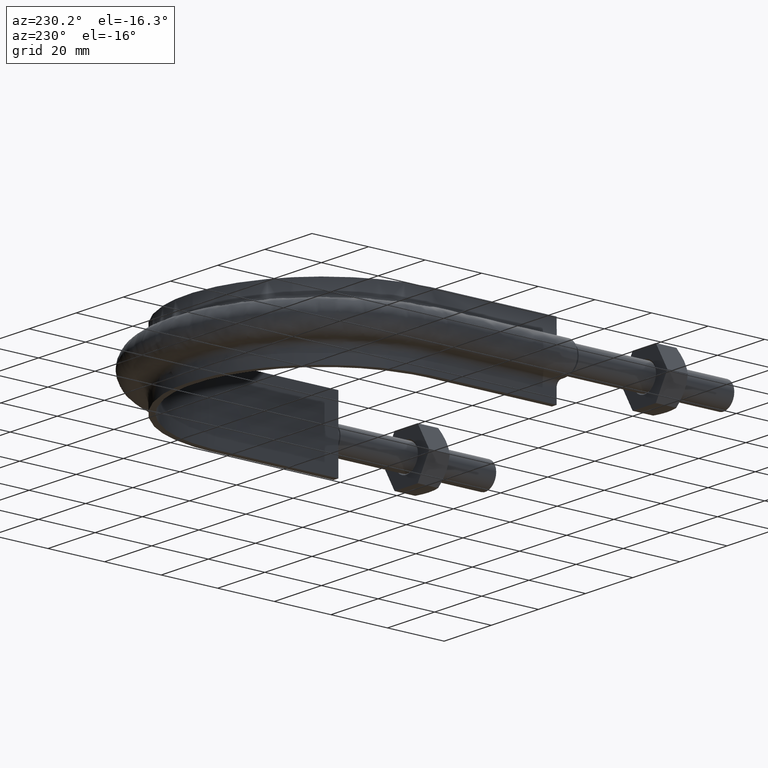
[diagram: clean part render]
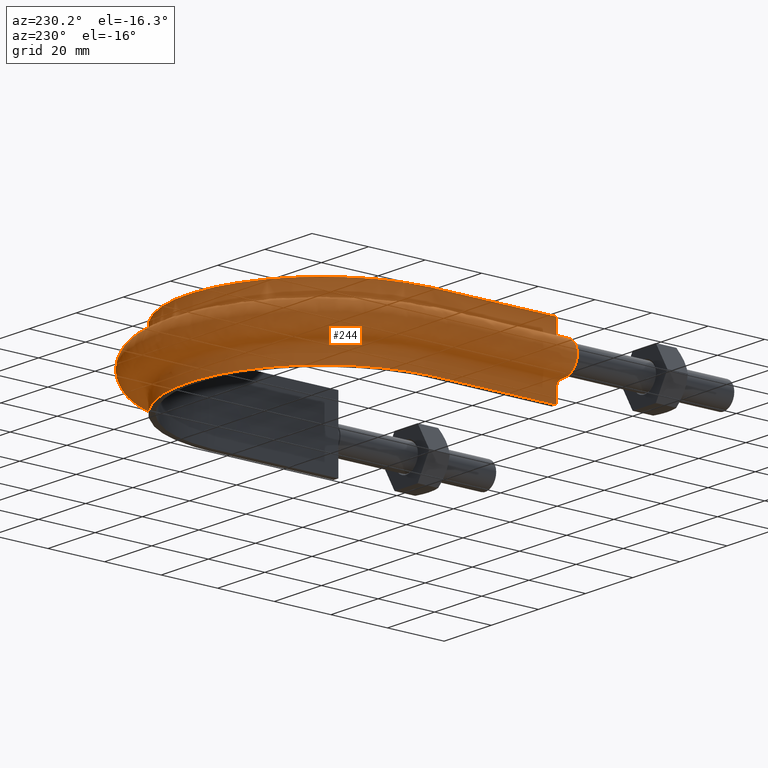
[diagram: same view with one face highlighted and labeled with its STEP entity id]
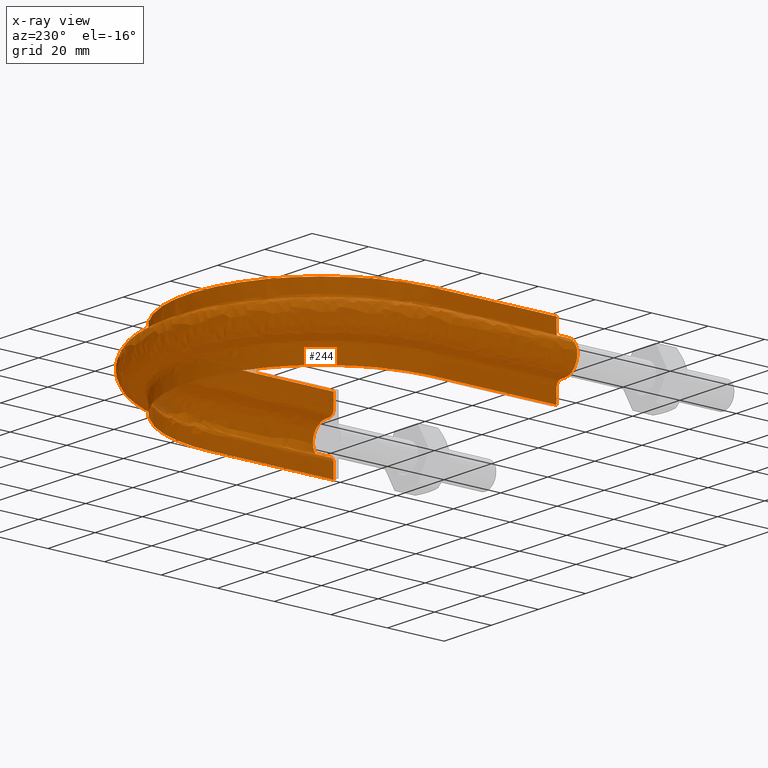
[diagram: x-ray of the same camera — body ghosted, the highlighted face saturated]
A machine part, auxiliary view. The second image highlights one B-rep face of the part: STEP entity #244.
The next image is the same camera in x-ray: the body ghosted, the highlighted face saturated — about 1% of this face is hidden behind the body in this view.
In plain terms, the highlighted face is a freeform B-spline surface patch.
Its self-contained STEP definition (entity closure, byte-faithful):
#244 = ADVANCED_FACE( '', ( #354 ), #355, .F. );
#354 = FACE_OUTER_BOUND( '', #685, .T. );
#355 = B_SPLINE_SURFACE_WITH_KNOTS( '', 3, 3, ( ( #686, #687, #688, #689, #690, #691, #692, #693, #694, #695, #696, #697, #698, #699, #700, #701 ), ( #702, #703, #704, #705, #706, #707, #708, #709, #710, #711, #712, #713, #714, #715, #716, #717 ), ( #718, #719, #720, #721, #722, #723, #724, #725, #726, #727, #728, #729, #730, #731, #732, #733 ), ( #734, #735, #736, #737, #738, #739, #740, #741, #742, #743, #744, #745, #746, #747, #748, #749 ), ( #750, #751, #752, #753, #754, #755, #756, #757, #758, #759, #760, #761, #762, #763, #764, #765 ), ( #766, #767, #768, #769, #770, #771, #772, #773, #774, #775, #776, #777, #778, #779, #780, #781 ), ( #782, #783, #784, #785, #786, #787, #788, #789, #790, #791, #792, #793, #794, #795, #796, #797 ), ( #798, #799, #800, #801, #802, #803, #804, #805, #806, #807, #808, #809, #810, #811, #812, #813 ), ( #814, #815, #816, #817, #818, #819, #820, #821, #822, #823, #824, #825, #826, #827, #828, #829 ), ( #830, #831, #832, #833, #834, #835, #836, #837, #838, #839, #840, #841, #842, #843, #844, #845 ), ( #846, #847, #848, #849, #850, #851, #852, #853, #854, #855, #856, #857, #858, #859, #860, #861 ), ( #862, #863, #864, #865, #866, #867, #868, #869, #870, #871, #872, #873, #874, #875, #876, #877 ), ( #878, #879, #880, #881, #882, #883, #884, #885, #886, #887, #888, #889, #890, #891, #892, #893 ), ( #894, #895, #896, #897, #898, #899, #900, #901, #902, #903, #904, #905, #906, #907, #908, #909 ), ( #910, #911, #912, #913, #914, #915, #916, #917, #918, #919, #920, #921, #922, #923, #924, #925 ), ( #926, #927, #928, #929, #930, #931, #932, #933, #934, #935, #936, #937, #938, #939, #940, #941 ), ( #942, #943, #944, #945, #946, #947, #948, #949, #950, #951, #952, #953, #954, #955, #956, #957 ), ( #958, #959, #960, #961, #962, #963, #964, #965, #966, #967, #968, #969, #970, #971, #972, #973 ), ( #974, #975, #976, #977, #978, #979, #980, #981, #982, #983, #984, #985, #986, #987, #988, #989 ), ( #990, #991, #992, #993, #994, #995, #996, #997, #998, #999, #1000, #1001, #1002, #1003, #1004, #1005 ), ( #1006, #1007, #1008, #1009, #1010, #1011, #1012, #1013, #1014, #1015, #1016, #1017, #1018, #1019, #1020, #1021 ), ( #1022, #1023, #1024, #1025, #1026, #1027, #1028, #1029, #1030, #1031, #1032, #1033, #1034, #1035, #1036, #1037 ), ( #1038, #1039, #1040, #1041, #1042, #1043, #1044, #1045, #1046, #1047, #1048, #1049, #1050, #1051, #1052, #1053 ), ( #1054, #1055, #1056, #1057, #1058, #1059, #1060, #1061, #1062, #1063, #1064, #1065, #1066, #1067, #1068, #1069 ), ( #1070, #1071, #1072, #1073, #1074, #1075, #1076, #1077, #1078, #1079, #1080, #1081, #1082, #1083, #1084, #1085 ), ( #1086, #1087, #1088, #1089, #1090, #1091, #1092, #1093, #1094, #1095, #1096, #1097, #1098, #1099, #1100, #1101 ), ( #1102, #1103, #1104, #1105, #1106, #1107, #1108, #1109, #1110, #1111, #1112, #1113, #1114, #1115, #1116, #1117 ), ( #1118, #1119, #1120, #1121, #1122, #1123, #1124, #1125, #1126, #1127, #1128, #1129, #1130, #1131, #1132, #1133 ), ( #1134, #1135, #1136, #1137, #1138, #1139, #1140, #1141, #1142, #1143, #1144, #1145, #1146, #1147, #1148, #1149 ), ( #1150, #1151, #1152, #1153, #1154, #1155, #1156, #1157, #1158, #1159, #1160, #1161, #1162, #1163, #1164, #1165 ), ( #1166, #1167, #1168, #1169, #1170, #1171, #1172, #1173, #1174, #1175, #1176, #1177, #1178, #1179, #1180, #1181 ) ), .UNSPECIFIED., .F., .F., .F., ( 4, 3, 1, 1, 1, 3, 3, 1, 1, 1, 3, 3, 1, 1, 1, 3, 4 ), ( 4, 3, 1, 1, 1, 1, 1, 1, 3, 4 ), ( 0.105263157894737, 0.157894736842105, 0.210526315789474, 0.263157894736842, 0.315789473684211, 0.368421052631579, 0.421052631578947, 0.473684210526316, 0.526315789473684, 0.578947368421053, 0.631578947368421, 0.684210526315789, 0.736842105263158, 0.789473684210526, 0.842105263157895, 0.894736842105263, 0.947368421052632 ), ( 0.000000000000000, 1.00000000000000, 2.00000000000000, 3.00000000000000, 4.00000000000000, 5.00000000000000, 6.00000000000000, 7.00000000000000, 8.00000000000000, 9.00000000000000 ), .UNSPECIFIED. );
#685 = EDGE_LOOP( '', ( #1603, #1604, #1605, #1606 ) );
#686 = CARTESIAN_POINT( '', ( -47.3000000000000, 53.1000000000000, 12.5000000000000 ) );
#687 = CARTESIAN_POINT( '', ( -47.3000000000000, 68.6333333333334, 12.5000000000000 ) );
#688 = CARTESIAN_POINT( '', ( -47.3000000000000, 84.1666666666667, 12.5000000000000 ) );
#689 = CARTESIAN_POINT( '', ( -47.3000000000000, 99.7000000000000, 12.5000000000000 ) );
#690 = CARTESIAN_POINT( '', ( -47.3000000000000, 106.766118839385, 12.5000000000000 ) );
#691 = CARTESIAN_POINT( '', ( -44.0706150865366, 120.927141121989, 12.5000000000000 ) );
#692 = CARTESIAN_POINT( '', ( -30.4978119078285, 137.942032975526, 12.5000000000000 ) );
#693 = CARTESIAN_POINT( '', ( -10.8845430496578, 147.388501700335, 12.5000000000000 ) );
#694 = CARTESIAN_POINT( '', ( 10.8845430496579, 147.388501700335, 12.5000000000000 ) );
#695 = CARTESIAN_POINT( '', ( 30.4978119078286, 137.942032975526, 12.5000000000000 ) );
#696 = CARTESIAN_POINT( '', ( 44.0706150865366, 120.927141121989, 12.5000000000000 ) );
#697 = CARTESIAN_POINT( '', ( 47.3000000000000, 106.766118839385, 12.5000000000000 ) );
#698 = CARTESIAN_POINT( '', ( 47.3000000000000, 99.7000000000000, 12.5000000000000 ) );
#699 = CARTESIAN_POINT( '', ( 47.3000000000000, 84.1666666666667, 12.5000000000000 ) );
#700 = CARTESIAN_POINT( '', ( 47.3000000000000, 68.6333333333333, 12.5000000000000 ) );
#701 = CARTESIAN_POINT( '', ( 47.3000000000000, 53.1000000000000, 12.5000000000000 ) );
#702 = CARTESIAN_POINT( '', ( -47.3000000000000, 53.1000000000000, 10.8666666666667 ) );
#703 = CARTESIAN_POINT( '', ( -47.3000000000000, 68.6333333333334, 10.8666666666667 ) );
#704 = CARTESIAN_POINT( '', ( -47.3000000000000, 84.1666666666667, 10.8666666666667 ) );
#705 = CARTESIAN_POINT( '', ( -47.3000000000000, 99.7000000000000, 10.8666666666667 ) );
#706 = CARTESIAN_POINT( '', ( -47.3000000000000, 106.766118839385, 10.8666666666667 ) );
#707 = CARTESIAN_POINT( '', ( -44.0706150865365, 120.927141121989, 10.8666666666667 ) );
#708 = CARTESIAN_POINT( '', ( -30.4978119078285, 137.942032975526, 10.8666666666667 ) );
#709 = CARTESIAN_POINT( '', ( -10.8845430496578, 147.388501700335, 10.8666666666667 ) );
#710 = CARTESIAN_POINT( '', ( 10.8845430496579, 147.388501700335, 10.8666666666667 ) );
#711 = CARTESIAN_POINT( '', ( 30.4978119078286, 137.942032975526, 10.8666666666667 ) );
#712 = CARTESIAN_POINT( '', ( 44.0706150865366, 120.927141121989, 10.8666666666667 ) );
#713 = CARTESIAN_POINT( '', ( 47.3000000000000, 106.766118839385, 10.8666666666667 ) );
#714 = CARTESIAN_POINT( '', ( 47.3000000000000, 99.7000000000000, 10.8666666666667 ) );
#715 = CARTESIAN_POINT( '', ( 47.3000000000000, 84.1666666666667, 10.8666666666667 ) );
#716 = CARTESIAN_POINT( '', ( 47.3000000000000, 68.6333333333333, 10.8666666666667 ) );
#717 = CARTESIAN_POINT( '', ( 47.3000000000000, 53.1000000000000, 10.8666666666667 ) );
#718 = CARTESIAN_POINT( '', ( -47.3000000000000, 53.1000000000000, 9.23333333333332 ) );
#719 = CARTESIAN_POINT( '', ( -47.3000000000000, 68.6333333333334, 9.23333333333332 ) );
#720 = CARTESIAN_POINT( '', ( -47.3000000000000, 84.1666666666667, 9.23333333333332 ) );
#721 = CARTESIAN_POINT( '', ( -47.3000000000000, 99.7000000000000, 9.23333333333332 ) );
#722 = CARTESIAN_POINT( '', ( -47.3000000000000, 106.766118839385, 9.23333333333332 ) );
#723 = CARTESIAN_POINT( '', ( -44.0706150865365, 120.927141121989, 9.23333333333333 ) );
#724 = CARTESIAN_POINT( '', ( -30.4978119078285, 137.942032975526, 9.23333333333332 ) );
#725 = CARTESIAN_POINT( '', ( -10.8845430496578, 147.388501700335, 9.23333333333332 ) );
#726 = CARTESIAN_POINT( '', ( 10.8845430496579, 147.388501700335, 9.23333333333332 ) );
#727 = CARTESIAN_POINT( '', ( 30.4978119078286, 137.942032975526, 9.23333333333332 ) );
#728 = CARTESIAN_POINT( '', ( 44.0706150865366, 120.927141121989, 9.23333333333332 ) );
#729 = CARTESIAN_POINT( '', ( 47.3000000000000, 106.766118839385, 9.23333333333332 ) );
#730 = CARTESIAN_POINT( '', ( 47.3000000000000, 99.7000000000000, 9.23333333333332 ) );
#731 = CARTESIAN_POINT( '', ( 47.3000000000000, 84.1666666666667, 9.23333333333332 ) );
#732 = CARTESIAN_POINT( '', ( 47.3000000000000, 68.6333333333333, 9.23333333333332 ) );
#733 = CARTESIAN_POINT( '', ( 47.3000000000000, 53.1000000000000, 9.23333333333332 ) );
#734 = CARTESIAN_POINT( '', ( -47.3000000000000, 53.1000000000000, 7.59999999999998 ) );
#735 = CARTESIAN_POINT( '', ( -47.3000000000000, 68.6333333333334, 7.59999999999998 ) );
#736 = CARTESIAN_POINT( '', ( -47.3000000000000, 84.1666666666667, 7.59999999999998 ) );
#737 = CARTESIAN_POINT( '', ( -47.3000000000000, 99.7000000000000, 7.59999999999998 ) );
#738 = CARTESIAN_POINT( '', ( -47.3000000000000, 106.766118839385, 7.59999999999998 ) );
#739 = CARTESIAN_POINT( '', ( -44.0706150865365, 120.927141121989, 7.59999999999998 ) );
#740 = CARTESIAN_POINT( '', ( -30.4978119078285, 137.942032975526, 7.59999999999998 ) );
#741 = CARTESIAN_POINT( '', ( -10.8845430496578, 147.388501700335, 7.59999999999998 ) );
#742 = CARTESIAN_POINT( '', ( 10.8845430496579, 147.388501700335, 7.59999999999998 ) );
#743 = CARTESIAN_POINT( '', ( 30.4978119078286, 137.942032975526, 7.59999999999998 ) );
#744 = CARTESIAN_POINT( '', ( 44.0706150865366, 120.927141121989, 7.59999999999998 ) );
#745 = CARTESIAN_POINT( '', ( 47.3000000000000, 106.766118839385, 7.59999999999998 ) );
#746 = CARTESIAN_POINT( '', ( 47.3000000000000, 99.7000000000000, 7.59999999999998 ) );
#747 = CARTESIAN_POINT( '', ( 47.3000000000000, 84.1666666666667, 7.59999999999998 ) );
#748 = CARTESIAN_POINT( '', ( 47.3000000000000, 68.6333333333333, 7.59999999999998 ) );
#749 = CARTESIAN_POINT( '', ( 47.3000000000000, 53.1000000000000, 7.59999999999998 ) );
#750 = CARTESIAN_POINT( '', ( -47.3000000000000, 53.1000000000000, 7.33823584172332 ) );
#751 = CARTESIAN_POINT( '', ( -47.3000000000000, 68.6333333333334, 7.33823584172332 ) );
#752 = CARTESIAN_POINT( '', ( -47.3000000000000, 84.1666666666667, 7.33823584172332 ) );
#753 = CARTESIAN_POINT( '', ( -47.3000000000000, 99.7000000000000, 7.33823584172332 ) );
#754 = CARTESIAN_POINT( '', ( -47.3000000000000, 106.766118839385, 7.33823584172332 ) );
#755 = CARTESIAN_POINT( '', ( -44.0706150865365, 120.927141121989, 7.33823584172332 ) );
#756 = CARTESIAN_POINT( '', ( -30.4978119078285, 137.942032975526, 7.33823584172332 ) );
#757 = CARTESIAN_POINT( '', ( -10.8845430496578, 147.388501700335, 7.33823584172332 ) );
#758 = CARTESIAN_POINT( '', ( 10.8845430496579, 147.388501700335, 7.33823584172332 ) );
#759 = CARTESIAN_POINT( '', ( 30.4978119078286, 137.942032975526, 7.33823584172332 ) );
#760 = CARTESIAN_POINT( '', ( 44.0706150865366, 120.927141121989, 7.33823584172332 ) );
#761 = CARTESIAN_POINT( '', ( 47.3000000000000, 106.766118839385, 7.33823584172332 ) );
#762 = CARTESIAN_POINT( '', ( 47.3000000000000, 99.7000000000000, 7.33823584172332 ) );
#763 = CARTESIAN_POINT( '', ( 47.3000000000000, 84.1666666666667, 7.33823584172332 ) );
#764 = CARTESIAN_POINT( '', ( 47.3000000000000, 68.6333333333333, 7.33823584172332 ) );
#765 = CARTESIAN_POINT( '', ( 47.3000000000000, 53.1000000000000, 7.33823584172332 ) );
#766 = CARTESIAN_POINT( '', ( -47.4041362568359, 53.1000000000000, 6.81470752516999 ) );
#767 = CARTESIAN_POINT( '', ( -47.4041362568359, 68.6333333333334, 6.81470752516999 ) );
#768 = CARTESIAN_POINT( '', ( -47.4041362568359, 84.1666666666667, 6.81470752516999 ) );
#769 = CARTESIAN_POINT( '', ( -47.4041362568359, 99.7000000000000, 6.81470752516999 ) );
#770 = CARTESIAN_POINT( '', ( -47.4041362568359, 106.781964453431, 6.81470752516999 ) );
#771 = CARTESIAN_POINT( '', ( -44.1676414901638, 120.973741238848, 6.81470752516999 ) );
#772 = CARTESIAN_POINT( '', ( -30.5649562624536, 138.026262316408, 6.81470752516999 ) );
#773 = CARTESIAN_POINT( '', ( -10.9085065923758, 147.493486244310, 6.81470752516999 ) );
#774 = CARTESIAN_POINT( '', ( 10.9085065923758, 147.493486244310, 6.81470752516999 ) );
#775 = CARTESIAN_POINT( '', ( 30.5649562624537, 138.026262316408, 6.81470752516999 ) );
#776 = CARTESIAN_POINT( '', ( 44.1676414901638, 120.973741238848, 6.81470752516999 ) );
#777 = CARTESIAN_POINT( '', ( 47.4041362568359, 106.781964453431, 6.81470752516999 ) );
#778 = CARTESIAN_POINT( '', ( 47.4041362568359, 99.7000000000000, 6.81470752516999 ) );
#779 = CARTESIAN_POINT( '', ( 47.4041362568359, 84.1666666666667, 6.81470752516999 ) );
#780 = CARTESIAN_POINT( '', ( 47.4041362568359, 68.6333333333333, 6.81470752516999 ) );
#781 = CARTESIAN_POINT( '', ( 47.4041362568359, 53.1000000000000, 6.81470752516999 ) );
#782 = CARTESIAN_POINT( '', ( -47.8489687109389, 53.1000000000000, 6.14896871093886 ) );
#783 = CARTESIAN_POINT( '', ( -47.8489687109389, 68.6333333333334, 6.14896871093886 ) );
#784 = CARTESIAN_POINT( '', ( -47.8489687109389, 84.1666666666667, 6.14896871093886 ) );
#785 = CARTESIAN_POINT( '', ( -47.8489687109389, 99.7000000000000, 6.14896871093886 ) );
#786 = CARTESIAN_POINT( '', ( -47.8489687109389, 106.849651189995, 6.14896871093886 ) );
#787 = CARTESIAN_POINT( '', ( -44.5821032208778, 121.172800096677, 6.14896871093886 ) );
#788 = CARTESIAN_POINT( '', ( -30.8517726792767, 138.386059619966, 6.14896871093886 ) );
#789 = CARTESIAN_POINT( '', ( -11.0108701863836, 147.941942274498, 6.14896871093886 ) );
#790 = CARTESIAN_POINT( '', ( 11.0108701863836, 147.941942274498, 6.14896871093886 ) );
#791 = CARTESIAN_POINT( '', ( 30.8517726792767, 138.386059619966, 6.14896871093886 ) );
#792 = CARTESIAN_POINT( '', ( 44.5821032208778, 121.172800096677, 6.14896871093886 ) );
#793 = CARTESIAN_POINT( '', ( 47.8489687109389, 106.849651189995, 6.14896871093886 ) );
#794 = CARTESIAN_POINT( '', ( 47.8489687109389, 99.7000000000000, 6.14896871093886 ) );
#795 = CARTESIAN_POINT( '', ( 47.8489687109389, 84.1666666666667, 6.14896871093886 ) );
#796 = CARTESIAN_POINT( '', ( 47.8489687109389, 68.6333333333333, 6.14896871093886 ) );
#797 = CARTESIAN_POINT( '', ( 47.8489687109389, 53.1000000000000, 6.14896871093886 ) );
#798 = CARTESIAN_POINT( '', ( -48.5147075251700, 53.1000000000000, 5.70413625683589 ) );
#799 = CARTESIAN_POINT( '', ( -48.5147075251700, 68.6333333333334, 5.70413625683589 ) );
#800 = CARTESIAN_POINT( '', ( -48.5147075251700, 84.1666666666667, 5.70413625683589 ) );
#801 = CARTESIAN_POINT( '', ( -48.5147075251700, 99.7000000000000, 5.70413625683589 ) );
#802 = CARTESIAN_POINT( '', ( -48.5147075251700, 106.950951549993, 5.70413625683589 ) );
#803 = CARTESIAN_POINT( '', ( -45.2023890354686, 121.470712730412, 5.70413625683589 ) );
#804 = CARTESIAN_POINT( '', ( -31.2810237815211, 138.924534337862, 5.70413625683589 ) );
#805 = CARTESIAN_POINT( '', ( -11.1640681310628, 148.613104153578, 5.70413625683589 ) );
#806 = CARTESIAN_POINT( '', ( 11.1640681310629, 148.613104153579, 5.70413625683589 ) );
#807 = CARTESIAN_POINT( '', ( 31.2810237815212, 138.924534337862, 5.70413625683589 ) );
#808 = CARTESIAN_POINT( '', ( 45.2023890354687, 121.470712730412, 5.70413625683589 ) );
#809 = CARTESIAN_POINT( '', ( 48.5147075251700, 106.950951549993, 5.70413625683589 ) );
#810 = CARTESIAN_POINT( '', ( 48.5147075251700, 99.7000000000000, 5.70413625683589 ) );
#811 = CARTESIAN_POINT( '', ( 48.5147075251700, 84.1666666666667, 5.70413625683589 ) );
#812 = CARTESIAN_POINT( '', ( 48.5147075251700, 68.6333333333333, 5.70413625683589 ) );
#813 = CARTESIAN_POINT( '', ( 48.5147075251700, 53.1000000000000, 5.70413625683589 ) );
#814 = CARTESIAN_POINT( '', ( -49.0382358417233, 53.1000000000000, 5.59999999999998 ) );
#815 = CARTESIAN_POINT( '', ( -49.0382358417233, 68.6333333333334, 5.59999999999998 ) );
#816 = CARTESIAN_POINT( '', ( -49.0382358417233, 84.1666666666667, 5.59999999999998 ) );
#817 = CARTESIAN_POINT( '', ( -49.0382358417233, 99.7000000000000, 5.59999999999998 ) );
#818 = CARTESIAN_POINT( '', ( -49.0382358417233, 107.030612831268, 5.59999999999998 ) );
#819 = CARTESIAN_POINT( '', ( -45.6901737062027, 121.704987338239, 5.59999999999998 ) );
#820 = CARTESIAN_POINT( '', ( -31.6185812472012, 139.347983829676, 5.59999999999998 ) );
#821 = CARTESIAN_POINT( '', ( -11.2845409957402, 149.140897097566, 5.59999999999998 ) );
#822 = CARTESIAN_POINT( '', ( 11.2845409957402, 149.140897097566, 5.59999999999998 ) );
#823 = CARTESIAN_POINT( '', ( 31.6185812472012, 139.347983829676, 5.59999999999998 ) );
#824 = CARTESIAN_POINT( '', ( 45.6901737062028, 121.704987338239, 5.59999999999998 ) );
#825 = CARTESIAN_POINT( '', ( 49.0382358417234, 107.030612831268, 5.59999999999998 ) );
#826 = CARTESIAN_POINT( '', ( 49.0382358417234, 99.7000000000000, 5.59999999999998 ) );
#827 = CARTESIAN_POINT( '', ( 49.0382358417234, 84.1666666666667, 5.59999999999998 ) );
#828 = CARTESIAN_POINT( '', ( 49.0382358417233, 68.6333333333333, 5.59999999999998 ) );
#829 = CARTESIAN_POINT( '', ( 49.0382358417233, 53.1000000000000, 5.59999999999998 ) );
#830 = CARTESIAN_POINT( '', ( -49.3000000000000, 53.1000000000000, 5.59999999999998 ) );
#831 = CARTESIAN_POINT( '', ( -49.3000000000000, 68.6333333333334, 5.59999999999998 ) );
#832 = CARTESIAN_POINT( '', ( -49.3000000000000, 84.1666666666667, 5.59999999999998 ) );
#833 = CARTESIAN_POINT( '', ( -49.3000000000000, 99.7000000000000, 5.59999999999998 ) );
#834 = CARTESIAN_POINT( '', ( -49.3000000000000, 107.070443471905, 5.59999999999998 ) );
#835 = CARTESIAN_POINT( '', ( -45.9340660415698, 121.822124642153, 5.59999999999998 ) );
#836 = CARTESIAN_POINT( '', ( -31.7873599800412, 139.559708575583, 5.59999999999998 ) );
#837 = CARTESIAN_POINT( '', ( -11.3447774280788, 149.404793569560, 5.59999999999998 ) );
#838 = CARTESIAN_POINT( '', ( 11.3447774280789, 149.404793569560, 5.59999999999998 ) );
#839 = CARTESIAN_POINT( '', ( 31.7873599800412, 139.559708575583, 5.59999999999998 ) );
#840 = CARTESIAN_POINT( '', ( 45.9340660415698, 121.822124642153, 5.59999999999998 ) );
#841 = CARTESIAN_POINT( '', ( 49.3000000000000, 107.070443471905, 5.59999999999998 ) );
#842 = CARTESIAN_POINT( '', ( 49.3000000000000, 99.7000000000000, 5.59999999999998 ) );
#843 = CARTESIAN_POINT( '', ( 49.3000000000000, 84.1666666666667, 5.59999999999998 ) );
#844 = CARTESIAN_POINT( '', ( 49.3000000000000, 68.6333333333333, 5.59999999999998 ) );
#845 = CARTESIAN_POINT( '', ( 49.3000000000000, 53.1000000000000, 5.59999999999998 ) );
#846 = CARTESIAN_POINT( '', ( -49.7000000000000, 53.1000000000000, 5.60000000000000 ) );
#847 = CARTESIAN_POINT( '', ( -49.7000000000000, 68.6333333333334, 5.60000000000000 ) );
#848 = CARTESIAN_POINT( '', ( -49.7000000000000, 84.1666666666667, 5.60000000000000 ) );
#849 = CARTESIAN_POINT( '', ( -49.7000000000000, 99.7000000000000, 5.60000000000000 ) );
#850 = CARTESIAN_POINT( '', ( -49.7000000000000, 107.131308398409, 5.60000000000000 ) );
#851 = CARTESIAN_POINT( '', ( -46.3067562325765, 122.001121346185, 5.60000000000000 ) );
#852 = CARTESIAN_POINT( '', ( -32.0452695944837, 139.883243695594, 5.60000000000000 ) );
#853 = CARTESIAN_POINT( '', ( -11.4368243037631, 149.808051943405, 5.60000000000000 ) );
#854 = CARTESIAN_POINT( '', ( 11.4368243037631, 149.808051943405, 5.60000000000000 ) );
#855 = CARTESIAN_POINT( '', ( 32.0452695944838, 139.883243695594, 5.60000000000000 ) );
#856 = CARTESIAN_POINT( '', ( 46.3067562325765, 122.001121346185, 5.60000000000000 ) );
#857 = CARTESIAN_POINT( '', ( 49.7000000000001, 107.131308398409, 5.60000000000000 ) );
#858 = CARTESIAN_POINT( '', ( 49.7000000000001, 99.7000000000000, 5.60000000000000 ) );
#859 = CARTESIAN_POINT( '', ( 49.7000000000000, 84.1666666666667, 5.60000000000000 ) );
#860 = CARTESIAN_POINT( '', ( 49.7000000000000, 68.6333333333333, 5.60000000000000 ) );
#861 = CARTESIAN_POINT( '', ( 49.7000000000000, 53.1000000000000, 5.60000000000000 ) );
#862 = CARTESIAN_POINT( '', ( -50.1000000000000, 53.1000000000000, 5.60000000000000 ) );
#863 = CARTESIAN_POINT( '', ( -50.1000000000000, 68.6333333333334, 5.60000000000000 ) );
#864 = CARTESIAN_POINT( '', ( -50.1000000000000, 84.1666666666667, 5.60000000000000 ) );
#865 = CARTESIAN_POINT( '', ( -50.1000000000000, 99.7000000000000, 5.60000000000000 ) );
#866 = CARTESIAN_POINT( '', ( -50.1000000000000, 107.192173324913, 5.60000000000000 ) );
#867 = CARTESIAN_POINT( '', ( -46.6794464235831, 122.180118050218, 5.60000000000000 ) );
#868 = CARTESIAN_POINT( '', ( -32.3031792089262, 140.206778815605, 5.60000000000000 ) );
#869 = CARTESIAN_POINT( '', ( -11.5288711794473, 150.211310317250, 5.60000000000000 ) );
#870 = CARTESIAN_POINT( '', ( 11.5288711794473, 150.211310317250, 5.60000000000000 ) );
#871 = CARTESIAN_POINT( '', ( 32.3031792089263, 140.206778815605, 5.60000000000000 ) );
#872 = CARTESIAN_POINT( '', ( 46.6794464235832, 122.180118050218, 5.60000000000000 ) );
#873 = CARTESIAN_POINT( '', ( 50.1000000000000, 107.192173324913, 5.60000000000000 ) );
#874 = CARTESIAN_POINT( '', ( 50.1000000000000, 99.7000000000000, 5.60000000000000 ) );
#875 = CARTESIAN_POINT( '', ( 50.1000000000000, 84.1666666666667, 5.60000000000000 ) );
#876 = CARTESIAN_POINT( '', ( 50.1000000000000, 68.6333333333333, 5.60000000000000 ) );
#877 = CARTESIAN_POINT( '', ( 50.1000000000000, 53.1000000000000, 5.60000000000000 ) );
#878 = CARTESIAN_POINT( '', ( -50.5000000000000, 53.1000000000000, 5.60000000000000 ) );
#879 = CARTESIAN_POINT( '', ( -50.5000000000000, 68.6333333333334, 5.60000000000000 ) );
#880 = CARTESIAN_POINT( '', ( -50.5000000000000, 84.1666666666667, 5.60000000000000 ) );
#881 = CARTESIAN_POINT( '', ( -50.5000000000000, 99.7000000000000, 5.60000000000000 ) );
#882 = CARTESIAN_POINT( '', ( -50.5000000000000, 107.253038251417, 5.60000000000000 ) );
#883 = CARTESIAN_POINT( '', ( -47.0521366145898, 122.359114754251, 5.60000000000000 ) );
#884 = CARTESIAN_POINT( '', ( -32.5610888233687, 140.530313935617, 5.60000000000000 ) );
#885 = CARTESIAN_POINT( '', ( -11.6209180551315, 150.614568691095, 5.60000000000000 ) );
#886 = CARTESIAN_POINT( '', ( 11.6209180551315, 150.614568691095, 5.60000000000000 ) );
#887 = CARTESIAN_POINT( '', ( 32.5610888233688, 140.530313935617, 5.60000000000000 ) );
#888 = CARTESIAN_POINT( '', ( 47.0521366145898, 122.359114754251, 5.60000000000000 ) );
#889 = CARTESIAN_POINT( '', ( 50.5000000000000, 107.253038251417, 5.60000000000000 ) );
#890 = CARTESIAN_POINT( '', ( 50.5000000000000, 99.7000000000000, 5.60000000000000 ) );
#891 = CARTESIAN_POINT( '', ( 50.5000000000000, 84.1666666666667, 5.60000000000000 ) );
#892 = CARTESIAN_POINT( '', ( 50.5000000000000, 68.6333333333333, 5.60000000000000 ) );
#893 = CARTESIAN_POINT( '', ( 50.5000000000000, 53.1000000000000, 5.60000000000000 ) );
#894 = CARTESIAN_POINT( '', ( -51.9627416997969, 53.1000000000000, 5.60000000000000 ) );
#895 = CARTESIAN_POINT( '', ( -51.9627416997969, 68.6333333333334, 5.60000000000000 ) );
#896 = CARTESIAN_POINT( '', ( -51.9627416997969, 84.1666666666667, 5.60000000000000 ) );
#897 = CARTESIAN_POINT( '', ( -51.9627416997969, 99.7000000000000, 5.60000000000000 ) );
#898 = CARTESIAN_POINT( '', ( -51.9627416997969, 107.475612416548, 5.60000000000000 ) );
#899 = CARTESIAN_POINT( '', ( -48.4150103233166, 123.013679612038, 5.60000000000001 ) );
#900 = CARTESIAN_POINT( '', ( -33.5042266929278, 141.713434714090, 5.60000000000000 ) );
#901 = CARTESIAN_POINT( '', ( -11.9575200636298, 152.089225789134, 5.60000000000000 ) );
#902 = CARTESIAN_POINT( '', ( 11.9575200636298, 152.089225789134, 5.60000000000000 ) );
#903 = CARTESIAN_POINT( '', ( 33.5042266929279, 141.713434714090, 5.60000000000000 ) );
#904 = CARTESIAN_POINT( '', ( 48.4150103233166, 123.013679612038, 5.60000000000000 ) );
#905 = CARTESIAN_POINT( '', ( 51.9627416997970, 107.475612416548, 5.60000000000000 ) );
#906 = CARTESIAN_POINT( '', ( 51.9627416997970, 99.7000000000000, 5.60000000000000 ) );
#907 = CARTESIAN_POINT( '', ( 51.9627416997970, 84.1666666666667, 5.60000000000000 ) );
#908 = CARTESIAN_POINT( '', ( 51.9627416997970, 68.6333333333333, 5.60000000000000 ) );
#909 = CARTESIAN_POINT( '', ( 51.9627416997970, 53.1000000000000, 5.60000000000000 ) );
#910 = CARTESIAN_POINT( '', ( -54.8882250993909, 53.1000000000000, 4.38822509939086 ) );
#911 = CARTESIAN_POINT( '', ( -54.8882250993909, 68.6333333333334, 4.38822509939086 ) );
#912 = CARTESIAN_POINT( '', ( -54.8882250993909, 84.1666666666667, 4.38822509939086 ) );
#913 = CARTESIAN_POINT( '', ( -54.8882250993908, 99.7000000000000, 4.38822509939086 ) );
#914 = CARTESIAN_POINT( '', ( -54.8882250993909, 107.920760746811, 4.38822509939086 ) );
#915 = CARTESIAN_POINT( '', ( -51.1407577407702, 124.322809327613, 4.38822509939086 ) );
#916 = CARTESIAN_POINT( '', ( -35.3905024320460, 144.079676271038, 4.38822509939086 ) );
#917 = CARTESIAN_POINT( '', ( -12.6307240806264, 155.038539985210, 4.38822509939086 ) );
#918 = CARTESIAN_POINT( '', ( 12.6307240806264, 155.038539985211, 4.38822509939086 ) );
#919 = CARTESIAN_POINT( '', ( 35.3905024320461, 144.079676271038, 4.38822509939086 ) );
#920 = CARTESIAN_POINT( '', ( 51.1407577407702, 124.322809327613, 4.38822509939086 ) );
#921 = CARTESIAN_POINT( '', ( 54.8882250993909, 107.920760746811, 4.38822509939086 ) );
#922 = CARTESIAN_POINT( '', ( 54.8882250993909, 99.7000000000000, 4.38822509939086 ) );
#923 = CARTESIAN_POINT( '', ( 54.8882250993909, 84.1666666666667, 4.38822509939086 ) );
#924 = CARTESIAN_POINT( '', ( 54.8882250993909, 68.6333333333333, 4.38822509939086 ) );
#925 = CARTESIAN_POINT( '', ( 54.8882250993909, 53.1000000000000, 4.38822509939086 ) );
#926 = CARTESIAN_POINT( '', ( -56.7058874503046, 53.1000000000000, 2.90303803946411E-015 ) );
#927 = CARTESIAN_POINT( '', ( -56.7058874503046, 68.6333333333334, 2.90303803946411E-015 ) );
#928 = CARTESIAN_POINT( '', ( -56.7058874503046, 84.1666666666667, 2.90303803946411E-015 ) );
#929 = CARTESIAN_POINT( '', ( -56.7058874503046, 99.7000000000000, 2.90303803946411E-015 ) );
#930 = CARTESIAN_POINT( '', ( -56.7058874503046, 108.197340460305, 2.90303803946411E-015 ) );
#931 = CARTESIAN_POINT( '', ( -52.8343200626392, 125.136198252258, 2.90303803946412E-015 ) );
#932 = CARTESIAN_POINT( '', ( -36.5624839223231, 145.549870288145, 2.90303803946411E-015 ) );
#933 = CARTESIAN_POINT( '', ( -13.0489994317524, 156.871008894782, 2.90303803946411E-015 ) );
#934 = CARTESIAN_POINT( '', ( 13.0489994317525, 156.871008894782, 2.90303803946411E-015 ) );
#935 = CARTESIAN_POINT( '', ( 36.5624839223232, 145.549870288145, 2.90303803946411E-015 ) );
#936 = CARTESIAN_POINT( '', ( 52.8343200626393, 125.136198252258, 2.90303803946411E-015 ) );
#937 = CARTESIAN_POINT( '', ( 56.7058874503046, 108.197340460305, 2.90303803946411E-015 ) );
#938 = CARTESIAN_POINT( '', ( 56.7058874503046, 99.7000000000000, 2.90303803946411E-015 ) );
#939 = CARTESIAN_POINT( '', ( 56.7058874503046, 84.1666666666667, 2.90303803946411E-015 ) );
#940 = CARTESIAN_POINT( '', ( 56.7058874503046, 68.6333333333333, 2.90303803946411E-015 ) );
#941 = CARTESIAN_POINT( '', ( 56.7058874503046, 53.1000000000000, 2.90303803946411E-015 ) );
#942 = CARTESIAN_POINT( '', ( -54.8882250993909, 53.1000000000000, -4.38822509939085 ) );
#943 = CARTESIAN_POINT( '', ( -54.8882250993909, 68.6333333333334, -4.38822509939085 ) );
#944 = CARTESIAN_POINT( '', ( -54.8882250993909, 84.1666666666667, -4.38822509939085 ) );
#945 = CARTESIAN_POINT( '', ( -54.8882250993908, 99.7000000000000, -4.38822509939085 ) );
#946 = CARTESIAN_POINT( '', ( -54.8882250993909, 107.920760746811, -4.38822509939085 ) );
#947 = CARTESIAN_POINT( '', ( -51.1407577407702, 124.322809327613, -4.38822509939086 ) );
#948 = CARTESIAN_POINT( '', ( -35.3905024320460, 144.079676271038, -4.38822509939085 ) );
#949 = CARTESIAN_POINT( '', ( -12.6307240806264, 155.038539985210, -4.38822509939086 ) );
#950 = CARTESIAN_POINT( '', ( 12.6307240806264, 155.038539985211, -4.38822509939085 ) );
#951 = CARTESIAN_POINT( '', ( 35.3905024320461, 144.079676271038, -4.38822509939086 ) );
#952 = CARTESIAN_POINT( '', ( 51.1407577407702, 124.322809327613, -4.38822509939086 ) );
#953 = CARTESIAN_POINT( '', ( 54.8882250993909, 107.920760746811, -4.38822509939085 ) );
#954 = CARTESIAN_POINT( '', ( 54.8882250993909, 99.7000000000000, -4.38822509939085 ) );
#955 = CARTESIAN_POINT( '', ( 54.8882250993909, 84.1666666666667, -4.38822509939085 ) );
#956 = CARTESIAN_POINT( '', ( 54.8882250993909, 68.6333333333333, -4.38822509939085 ) );
#957 = CARTESIAN_POINT( '', ( 54.8882250993909, 53.1000000000000, -4.38822509939085 ) );
#958 = CARTESIAN_POINT( '', ( -51.9627416997969, 53.1000000000000, -5.60000000000000 ) );
#959 = CARTESIAN_POINT( '', ( -51.9627416997969, 68.6333333333334, -5.60000000000000 ) );
#960 = CARTESIAN_POINT( '', ( -51.9627416997969, 84.1666666666667, -5.60000000000000 ) );
#961 = CARTESIAN_POINT( '', ( -51.9627416997969, 99.7000000000000, -5.60000000000000 ) );
#962 = CARTESIAN_POINT( '', ( -51.9627416997969, 107.475612416548, -5.60000000000000 ) );
#963 = CARTESIAN_POINT( '', ( -48.4150103233166, 123.013679612038, -5.60000000000000 ) );
#964 = CARTESIAN_POINT( '', ( -33.5042266929278, 141.713434714090, -5.60000000000000 ) );
#965 = CARTESIAN_POINT( '', ( -11.9575200636298, 152.089225789134, -5.60000000000000 ) );
#966 = CARTESIAN_POINT( '', ( 11.9575200636298, 152.089225789134, -5.60000000000000 ) );
#967 = CARTESIAN_POINT( '', ( 33.5042266929279, 141.713434714090, -5.60000000000000 ) );
#968 = CARTESIAN_POINT( '', ( 48.4150103233166, 123.013679612038, -5.60000000000000 ) );
#969 = CARTESIAN_POINT( '', ( 51.9627416997970, 107.475612416548, -5.60000000000000 ) );
#970 = CARTESIAN_POINT( '', ( 51.9627416997970, 99.7000000000000, -5.60000000000000 ) );
#971 = CARTESIAN_POINT( '', ( 51.9627416997970, 84.1666666666667, -5.60000000000000 ) );
#972 = CARTESIAN_POINT( '', ( 51.9627416997970, 68.6333333333333, -5.60000000000000 ) );
#973 = CARTESIAN_POINT( '', ( 51.9627416997970, 53.1000000000000, -5.60000000000000 ) );
#974 = CARTESIAN_POINT( '', ( -50.5000000000000, 53.1000000000000, -5.60000000000000 ) );
#975 = CARTESIAN_POINT( '', ( -50.5000000000000, 68.6333333333334, -5.60000000000000 ) );
#976 = CARTESIAN_POINT( '', ( -50.5000000000000, 84.1666666666667, -5.60000000000000 ) );
#977 = CARTESIAN_POINT( '', ( -50.5000000000000, 99.7000000000000, -5.60000000000000 ) );
#978 = CARTESIAN_POINT( '', ( -50.5000000000000, 107.253038251417, -5.60000000000000 ) );
#979 = CARTESIAN_POINT( '', ( -47.0521366145898, 122.359114754251, -5.60000000000000 ) );
#980 = CARTESIAN_POINT( '', ( -32.5610888233687, 140.530313935617, -5.60000000000000 ) );
#981 = CARTESIAN_POINT( '', ( -11.6209180551315, 150.614568691095, -5.60000000000000 ) );
#982 = CARTESIAN_POINT( '', ( 11.6209180551315, 150.614568691095, -5.60000000000000 ) );
#983 = CARTESIAN_POINT( '', ( 32.5610888233688, 140.530313935617, -5.60000000000000 ) );
#984 = CARTESIAN_POINT( '', ( 47.0521366145898, 122.359114754251, -5.60000000000000 ) );
#985 = CARTESIAN_POINT( '', ( 50.5000000000000, 107.253038251417, -5.60000000000000 ) );
#986 = CARTESIAN_POINT( '', ( 50.5000000000000, 99.7000000000000, -5.60000000000000 ) );
#987 = CARTESIAN_POINT( '', ( 50.5000000000000, 84.1666666666667, -5.60000000000000 ) );
#988 = CARTESIAN_POINT( '', ( 50.5000000000000, 68.6333333333333, -5.60000000000000 ) );
#989 = CARTESIAN_POINT( '', ( 50.5000000000000, 53.1000000000000, -5.60000000000000 ) );
#990 = CARTESIAN_POINT( '', ( -50.1000000000000, 53.1000000000000, -5.60000000000000 ) );
#991 = CARTESIAN_POINT( '', ( -50.1000000000000, 68.6333333333334, -5.60000000000000 ) );
#992 = CARTESIAN_POINT( '', ( -50.1000000000000, 84.1666666666667, -5.60000000000000 ) );
#993 = CARTESIAN_POINT( '', ( -50.1000000000000, 99.7000000000000, -5.60000000000000 ) );
#994 = CARTESIAN_POINT( '', ( -50.1000000000000, 107.192173324913, -5.59999999999999 ) );
#995 = CARTESIAN_POINT( '', ( -46.6794464235831, 122.180118050218, -5.60000000000000 ) );
#996 = CARTESIAN_POINT( '', ( -32.3031792089262, 140.206778815605, -5.60000000000000 ) );
#997 = CARTESIAN_POINT( '', ( -11.5288711794473, 150.211310317250, -5.60000000000000 ) );
#998 = CARTESIAN_POINT( '', ( 11.5288711794473, 150.211310317250, -5.60000000000000 ) );
#999 = CARTESIAN_POINT( '', ( 32.3031792089263, 140.206778815605, -5.60000000000000 ) );
#1000 = CARTESIAN_POINT( '', ( 46.6794464235832, 122.180118050218, -5.60000000000000 ) );
#1001 = CARTESIAN_POINT( '', ( 50.1000000000001, 107.192173324913, -5.59999999999999 ) );
#1002 = CARTESIAN_POINT( '', ( 50.1000000000001, 99.7000000000000, -5.59999999999999 ) );
#1003 = CARTESIAN_POINT( '', ( 50.1000000000000, 84.1666666666667, -5.60000000000000 ) );
#1004 = CARTESIAN_POINT( '', ( 50.1000000000000, 68.6333333333333, -5.60000000000000 ) );
#1005 = CARTESIAN_POINT( '', ( 50.1000000000000, 53.1000000000000, -5.60000000000000 ) );
#1006 = CARTESIAN_POINT( '', ( -49.7000000000000, 53.1000000000000, -5.60000000000000 ) );
#1007 = CARTESIAN_POINT( '', ( -49.7000000000000, 68.6333333333334, -5.60000000000000 ) );
#1008 = CARTESIAN_POINT( '', ( -49.7000000000000, 84.1666666666667, -5.60000000000000 ) );
#1009 = CARTESIAN_POINT( '', ( -49.7000000000000, 99.7000000000000, -5.60000000000000 ) );
#1010 = CARTESIAN_POINT( '', ( -49.7000000000000, 107.131308398409, -5.59999999999999 ) );
#1011 = CARTESIAN_POINT( '', ( -46.3067562325765, 122.001121346185, -5.60000000000000 ) );
#1012 = CARTESIAN_POINT( '', ( -32.0452695944837, 139.883243695594, -5.60000000000000 ) );
#1013 = CARTESIAN_POINT( '', ( -11.4368243037631, 149.808051943405, -5.60000000000000 ) );
#1014 = CARTESIAN_POINT( '', ( 11.4368243037631, 149.808051943405, -5.60000000000000 ) );
#1015 = CARTESIAN_POINT( '', ( 32.0452695944838, 139.883243695594, -5.60000000000000 ) );
#1016 = CARTESIAN_POINT( '', ( 46.3067562325765, 122.001121346185, -5.60000000000000 ) );
#1017 = CARTESIAN_POINT( '', ( 49.7000000000001, 107.131308398409, -5.59999999999999 ) );
#1018 = CARTESIAN_POINT( '', ( 49.7000000000001, 99.7000000000000, -5.59999999999999 ) );
#1019 = CARTESIAN_POINT( '', ( 49.7000000000000, 84.1666666666667, -5.60000000000000 ) );
#1020 = CARTESIAN_POINT( '', ( 49.7000000000000, 68.6333333333333, -5.60000000000000 ) );
#1021 = CARTESIAN_POINT( '', ( 49.7000000000000, 53.1000000000000, -5.60000000000000 ) );
#1022 = CARTESIAN_POINT( '', ( -49.3000000000000, 53.1000000000000, -5.60000000000000 ) );
#1023 = CARTESIAN_POINT( '', ( -49.3000000000000, 68.6333333333334, -5.60000000000000 ) );
#1024 = CARTESIAN_POINT( '', ( -49.3000000000000, 84.1666666666667, -5.60000000000000 ) );
#1025 = CARTESIAN_POINT( '', ( -49.3000000000000, 99.7000000000000, -5.60000000000000 ) );
#1026 = CARTESIAN_POINT( '', ( -49.3000000000000, 107.070443471905, -5.59999999999999 ) );
#1027 = CARTESIAN_POINT( '', ( -45.9340660415698, 121.822124642153, -5.60000000000000 ) );
#1028 = CARTESIAN_POINT( '', ( -31.7873599800412, 139.559708575583, -5.60000000000000 ) );
#1029 = CARTESIAN_POINT( '', ( -11.3447774280789, 149.404793569560, -5.60000000000000 ) );
#1030 = CARTESIAN_POINT( '', ( 11.3447774280789, 149.404793569560, -5.60000000000000 ) );
#1031 = CARTESIAN_POINT( '', ( 31.7873599800412, 139.559708575583, -5.60000000000000 ) );
#1032 = CARTESIAN_POINT( '', ( 45.9340660415699, 121.822124642153, -5.60000000000000 ) );
#1033 = CARTESIAN_POINT( '', ( 49.3000000000001, 107.070443471905, -5.59999999999999 ) );
#1034 = CARTESIAN_POINT( '', ( 49.3000000000001, 99.7000000000000, -5.59999999999999 ) );
#1035 = CARTESIAN_POINT( '', ( 49.3000000000001, 84.1666666666667, -5.60000000000000 ) );
#1036 = CARTESIAN_POINT( '', ( 49.3000000000000, 68.6333333333333, -5.60000000000000 ) );
#1037 = CARTESIAN_POINT( '', ( 49.3000000000000, 53.1000000000000, -5.60000000000000 ) );
#1038 = CARTESIAN_POINT( '', ( -49.0382358417233, 53.1000000000000, -5.60000000000000 ) );
#1039 = CARTESIAN_POINT( '', ( -49.0382358417233, 68.6333333333334, -5.60000000000000 ) );
#1040 = CARTESIAN_POINT( '', ( -49.0382358417233, 84.1666666666667, -5.60000000000000 ) );
#1041 = CARTESIAN_POINT( '', ( -49.0382358417233, 99.7000000000000, -5.60000000000000 ) );
#1042 = CARTESIAN_POINT( '', ( -49.0382358417233, 107.030612831268, -5.60000000000000 ) );
#1043 = CARTESIAN_POINT( '', ( -45.6901737062028, 121.704987338239, -5.60000000000000 ) );
#1044 = CARTESIAN_POINT( '', ( -31.6185812472012, 139.347983829676, -5.60000000000000 ) );
#1045 = CARTESIAN_POINT( '', ( -11.2845409957402, 149.140897097566, -5.60000000000000 ) );
#1046 = CARTESIAN_POINT( '', ( 11.2845409957402, 149.140897097566, -5.60000000000000 ) );
#1047 = CARTESIAN_POINT( '', ( 31.6185812472012, 139.347983829676, -5.60000000000000 ) );
#1048 = CARTESIAN_POINT( '', ( 45.6901737062028, 121.704987338239, -5.60000000000000 ) );
#1049 = CARTESIAN_POINT( '', ( 49.0382358417234, 107.030612831268, -5.60000000000000 ) );
#1050 = CARTESIAN_POINT( '', ( 49.0382358417234, 99.7000000000000, -5.60000000000000 ) );
#1051 = CARTESIAN_POINT( '', ( 49.0382358417234, 84.1666666666667, -5.60000000000000 ) );
#1052 = CARTESIAN_POINT( '', ( 49.0382358417234, 68.6333333333333, -5.60000000000000 ) );
#1053 = CARTESIAN_POINT( '', ( 49.0382358417234, 53.1000000000000, -5.60000000000000 ) );
#1054 = CARTESIAN_POINT( '', ( -48.5147075251700, 53.1000000000000, -5.70413625683591 ) );
#1055 = CARTESIAN_POINT( '', ( -48.5147075251700, 68.6333333333334, -5.70413625683591 ) );
#1056 = CARTESIAN_POINT( '', ( -48.5147075251700, 84.1666666666667, -5.70413625683591 ) );
#1057 = CARTESIAN_POINT( '', ( -48.5147075251700, 99.7000000000000, -5.70413625683591 ) );
#1058 = CARTESIAN_POINT( '', ( -48.5147075251700, 106.950951549993, -5.70413625683590 ) );
#1059 = CARTESIAN_POINT( '', ( -45.2023890354686, 121.470712730412, -5.70413625683591 ) );
#1060 = CARTESIAN_POINT( '', ( -31.2810237815211, 138.924534337862, -5.70413625683591 ) );
#1061 = CARTESIAN_POINT( '', ( -11.1640681310628, 148.613104153578, -5.70413625683591 ) );
#1062 = CARTESIAN_POINT( '', ( 11.1640681310629, 148.613104153579, -5.70413625683591 ) );
#1063 = CARTESIAN_POINT( '', ( 31.2810237815212, 138.924534337862, -5.70413625683591 ) );
#1064 = CARTESIAN_POINT( '', ( 45.2023890354687, 121.470712730412, -5.70413625683591 ) );
#1065 = CARTESIAN_POINT( '', ( 48.5147075251701, 106.950951549993, -5.70413625683590 ) );
#1066 = CARTESIAN_POINT( '', ( 48.5147075251701, 99.7000000000000, -5.70413625683590 ) );
#1067 = CARTESIAN_POINT( '', ( 48.5147075251701, 84.1666666666667, -5.70413625683591 ) );
#1068 = CARTESIAN_POINT( '', ( 48.5147075251700, 68.6333333333333, -5.70413625683591 ) );
#1069 = CARTESIAN_POINT( '', ( 48.5147075251700, 53.1000000000000, -5.70413625683591 ) );
#1070 = CARTESIAN_POINT( '', ( -47.8489687109389, 53.1000000000000, -6.14896871093887 ) );
#1071 = CARTESIAN_POINT( '', ( -47.8489687109389, 68.6333333333334, -6.14896871093887 ) );
#1072 = CARTESIAN_POINT( '', ( -47.8489687109389, 84.1666666666667, -6.14896871093887 ) );
#1073 = CARTESIAN_POINT( '', ( -47.8489687109389, 99.7000000000000, -6.14896871093887 ) );
#1074 = CARTESIAN_POINT( '', ( -47.8489687109389, 106.849651189995, -6.14896871093887 ) );
#1075 = CARTESIAN_POINT( '', ( -44.5821032208778, 121.172800096677, -6.14896871093888 ) );
#1076 = CARTESIAN_POINT( '', ( -30.8517726792767, 138.386059619966, -6.14896871093888 ) );
#1077 = CARTESIAN_POINT( '', ( -11.0108701863836, 147.941942274498, -6.14896871093887 ) );
#1078 = CARTESIAN_POINT( '', ( 11.0108701863836, 147.941942274498, -6.14896871093887 ) );
#1079 = CARTESIAN_POINT( '', ( 30.8517726792767, 138.386059619966, -6.14896871093888 ) );
#1080 = CARTESIAN_POINT( '', ( 44.5821032208778, 121.172800096677, -6.14896871093887 ) );
#1081 = CARTESIAN_POINT( '', ( 47.8489687109389, 106.849651189995, -6.14896871093887 ) );
#1082 = CARTESIAN_POINT( '', ( 47.8489687109389, 99.7000000000000, -6.14896871093887 ) );
#1083 = CARTESIAN_POINT( '', ( 47.8489687109389, 84.1666666666667, -6.14896871093887 ) );
#1084 = CARTESIAN_POINT( '', ( 47.8489687109389, 68.6333333333333, -6.14896871093887 ) );
#1085 = CARTESIAN_POINT( '', ( 47.8489687109389, 53.1000000000000, -6.14896871093887 ) );
#1086 = CARTESIAN_POINT( '', ( -47.4041362568359, 53.1000000000000, -6.81470752517001 ) );
#1087 = CARTESIAN_POINT( '', ( -47.4041362568359, 68.6333333333334, -6.81470752517001 ) );
#1088 = CARTESIAN_POINT( '', ( -47.4041362568359, 84.1666666666667, -6.81470752517001 ) );
#1089 = CARTESIAN_POINT( '', ( -47.4041362568359, 99.7000000000000, -6.81470752517001 ) );
#1090 = CARTESIAN_POINT( '', ( -47.4041362568359, 106.781964453431, -6.81470752517001 ) );
#1091 = CARTESIAN_POINT( '', ( -44.1676414901638, 120.973741238848, -6.81470752517001 ) );
#1092 = CARTESIAN_POINT( '', ( -30.5649562624536, 138.026262316408, -6.81470752517001 ) );
#1093 = CARTESIAN_POINT( '', ( -10.9085065923758, 147.493486244310, -6.81470752517001 ) );
#1094 = CARTESIAN_POINT( '', ( 10.9085065923758, 147.493486244310, -6.81470752517001 ) );
#1095 = CARTESIAN_POINT( '', ( 30.5649562624537, 138.026262316408, -6.81470752517001 ) );
#1096 = CARTESIAN_POINT( '', ( 44.1676414901638, 120.973741238848, -6.81470752517001 ) );
#1097 = CARTESIAN_POINT( '', ( 47.4041362568360, 106.781964453431, -6.81470752517001 ) );
#1098 = CARTESIAN_POINT( '', ( 47.4041362568360, 99.7000000000000, -6.81470752517001 ) );
#1099 = CARTESIAN_POINT( '', ( 47.4041362568359, 84.1666666666667, -6.81470752517001 ) );
#1100 = CARTESIAN_POINT( '', ( 47.4041362568359, 68.6333333333333, -6.81470752517001 ) );
#1101 = CARTESIAN_POINT( '', ( 47.4041362568359, 53.1000000000000, -6.81470752517001 ) );
#1102 = CARTESIAN_POINT( '', ( -47.3000000000000, 53.1000000000000, -7.33823584172333 ) );
#1103 = CARTESIAN_POINT( '', ( -47.3000000000000, 68.6333333333334, -7.33823584172333 ) );
#1104 = CARTESIAN_POINT( '', ( -47.3000000000000, 84.1666666666667, -7.33823584172333 ) );
#1105 = CARTESIAN_POINT( '', ( -47.3000000000000, 99.7000000000000, -7.33823584172333 ) );
#1106 = CARTESIAN_POINT( '', ( -47.3000000000000, 106.766118839385, -7.33823584172333 ) );
#1107 = CARTESIAN_POINT( '', ( -44.0706150865366, 120.927141121989, -7.33823584172334 ) );
#1108 = CARTESIAN_POINT( '', ( -30.4978119078286, 137.942032975526, -7.33823584172334 ) );
#1109 = CARTESIAN_POINT( '', ( -10.8845430496578, 147.388501700335, -7.33823584172333 ) );
#1110 = CARTESIAN_POINT( '', ( 10.8845430496579, 147.388501700335, -7.33823584172333 ) );
#1111 = CARTESIAN_POINT( '', ( 30.4978119078286, 137.942032975526, -7.33823584172334 ) );
#1112 = CARTESIAN_POINT( '', ( 44.0706150865366, 120.927141121989, -7.33823584172334 ) );
#1113 = CARTESIAN_POINT( '', ( 47.3000000000000, 106.766118839385, -7.33823584172333 ) );
#1114 = CARTESIAN_POINT( '', ( 47.3000000000000, 99.7000000000000, -7.33823584172333 ) );
#1115 = CARTESIAN_POINT( '', ( 47.3000000000000, 84.1666666666667, -7.33823584172333 ) );
#1116 = CARTESIAN_POINT( '', ( 47.3000000000000, 68.6333333333333, -7.33823584172333 ) );
#1117 = CARTESIAN_POINT( '', ( 47.3000000000000, 53.1000000000000, -7.33823584172333 ) );
#1118 = CARTESIAN_POINT( '', ( -47.3000000000000, 53.1000000000000, -7.60000000000000 ) );
#1119 = CARTESIAN_POINT( '', ( -47.3000000000000, 68.6333333333334, -7.60000000000000 ) );
#1120 = CARTESIAN_POINT( '', ( -47.3000000000000, 84.1666666666667, -7.60000000000000 ) );
#1121 = CARTESIAN_POINT( '', ( -47.3000000000000, 99.7000000000000, -7.60000000000000 ) );
#1122 = CARTESIAN_POINT( '', ( -47.3000000000000, 106.766118839385, -7.59999999999999 ) );
#1123 = CARTESIAN_POINT( '', ( -44.0706150865366, 120.927141121989, -7.60000000000000 ) );
#1124 = CARTESIAN_POINT( '', ( -30.4978119078286, 137.942032975526, -7.60000000000000 ) );
#1125 = CARTESIAN_POINT( '', ( -10.8845430496578, 147.388501700335, -7.60000000000000 ) );
#1126 = CARTESIAN_POINT( '', ( 10.8845430496579, 147.388501700335, -7.60000000000000 ) );
#1127 = CARTESIAN_POINT( '', ( 30.4978119078286, 137.942032975526, -7.60000000000000 ) );
#1128 = CARTESIAN_POINT( '', ( 44.0706150865366, 120.927141121989, -7.60000000000000 ) );
#1129 = CARTESIAN_POINT( '', ( 47.3000000000000, 106.766118839385, -7.59999999999999 ) );
#1130 = CARTESIAN_POINT( '', ( 47.3000000000000, 99.7000000000000, -7.59999999999999 ) );
#1131 = CARTESIAN_POINT( '', ( 47.3000000000000, 84.1666666666667, -7.60000000000000 ) );
#1132 = CARTESIAN_POINT( '', ( 47.3000000000000, 68.6333333333333, -7.60000000000000 ) );
#1133 = CARTESIAN_POINT( '', ( 47.3000000000000, 53.1000000000000, -7.60000000000000 ) );
#1134 = CARTESIAN_POINT( '', ( -47.3000000000000, 53.1000000000000, -9.23333333333333 ) );
#1135 = CARTESIAN_POINT( '', ( -47.3000000000000, 68.6333333333334, -9.23333333333333 ) );
#1136 = CARTESIAN_POINT( '', ( -47.3000000000000, 84.1666666666667, -9.23333333333333 ) );
#1137 = CARTESIAN_POINT( '', ( -47.3000000000000, 99.7000000000000, -9.23333333333333 ) );
#1138 = CARTESIAN_POINT( '', ( -47.3000000000000, 106.766118839385, -9.23333333333333 ) );
#1139 = CARTESIAN_POINT( '', ( -44.0706150865365, 120.927141121989, -9.23333333333333 ) );
#1140 = CARTESIAN_POINT( '', ( -30.4978119078285, 137.942032975526, -9.23333333333333 ) );
#1141 = CARTESIAN_POINT( '', ( -10.8845430496578, 147.388501700335, -9.23333333333333 ) );
#1142 = CARTESIAN_POINT( '', ( 10.8845430496579, 147.388501700335, -9.23333333333333 ) );
#1143 = CARTESIAN_POINT( '', ( 30.4978119078286, 137.942032975526, -9.23333333333333 ) );
#1144 = CARTESIAN_POINT( '', ( 44.0706150865366, 120.927141121989, -9.23333333333333 ) );
#1145 = CARTESIAN_POINT( '', ( 47.3000000000000, 106.766118839385, -9.23333333333333 ) );
#1146 = CARTESIAN_POINT( '', ( 47.3000000000000, 99.7000000000000, -9.23333333333333 ) );
#1147 = CARTESIAN_POINT( '', ( 47.3000000000000, 84.1666666666667, -9.23333333333333 ) );
#1148 = CARTESIAN_POINT( '', ( 47.3000000000000, 68.6333333333333, -9.23333333333333 ) );
#1149 = CARTESIAN_POINT( '', ( 47.3000000000000, 53.1000000000000, -9.23333333333333 ) );
#1150 = CARTESIAN_POINT( '', ( -47.3000000000000, 53.1000000000000, -10.8666666666667 ) );
#1151 = CARTESIAN_POINT( '', ( -47.3000000000000, 68.6333333333334, -10.8666666666667 ) );
#1152 = CARTESIAN_POINT( '', ( -47.3000000000000, 84.1666666666667, -10.8666666666667 ) );
#1153 = CARTESIAN_POINT( '', ( -47.3000000000000, 99.7000000000000, -10.8666666666667 ) );
#1154 = CARTESIAN_POINT( '', ( -47.3000000000000, 106.766118839385, -10.8666666666667 ) );
#1155 = CARTESIAN_POINT( '', ( -44.0706150865365, 120.927141121989, -10.8666666666667 ) );
#1156 = CARTESIAN_POINT( '', ( -30.4978119078285, 137.942032975526, -10.8666666666667 ) );
#1157 = CARTESIAN_POINT( '', ( -10.8845430496578, 147.388501700335, -10.8666666666667 ) );
#1158 = CARTESIAN_POINT( '', ( 10.8845430496579, 147.388501700335, -10.8666666666667 ) );
#1159 = CARTESIAN_POINT( '', ( 30.4978119078286, 137.942032975526, -10.8666666666667 ) );
#1160 = CARTESIAN_POINT( '', ( 44.0706150865366, 120.927141121989, -10.8666666666667 ) );
#1161 = CARTESIAN_POINT( '', ( 47.3000000000000, 106.766118839385, -10.8666666666667 ) );
#1162 = CARTESIAN_POINT( '', ( 47.3000000000000, 99.7000000000000, -10.8666666666667 ) );
#1163 = CARTESIAN_POINT( '', ( 47.3000000000000, 84.1666666666667, -10.8666666666667 ) );
#1164 = CARTESIAN_POINT( '', ( 47.3000000000000, 68.6333333333333, -10.8666666666667 ) );
#1165 = CARTESIAN_POINT( '', ( 47.3000000000000, 53.1000000000000, -10.8666666666667 ) );
#1166 = CARTESIAN_POINT( '', ( -47.3000000000000, 53.1000000000000, -12.5000000000000 ) );
#1167 = CARTESIAN_POINT( '', ( -47.3000000000000, 68.6333333333334, -12.5000000000000 ) );
#1168 = CARTESIAN_POINT( '', ( -47.3000000000000, 84.1666666666667, -12.5000000000000 ) );
#1169 = CARTESIAN_POINT( '', ( -47.3000000000000, 99.7000000000000, -12.5000000000000 ) );
#1170 = CARTESIAN_POINT( '', ( -47.3000000000000, 106.766118839385, -12.5000000000000 ) );
#1171 = CARTESIAN_POINT( '', ( -44.0706150865365, 120.927141121989, -12.5000000000000 ) );
#1172 = CARTESIAN_POINT( '', ( -30.4978119078285, 137.942032975526, -12.5000000000000 ) );
#1173 = CARTESIAN_POINT( '', ( -10.8845430496578, 147.388501700335, -12.5000000000000 ) );
#1174 = CARTESIAN_POINT( '', ( 10.8845430496579, 147.388501700335, -12.5000000000000 ) );
#1175 = CARTESIAN_POINT( '', ( 30.4978119078286, 137.942032975526, -12.5000000000000 ) );
#1176 = CARTESIAN_POINT( '', ( 44.0706150865366, 120.927141121989, -12.5000000000000 ) );
#1177 = CARTESIAN_POINT( '', ( 47.3000000000000, 106.766118839385, -12.5000000000000 ) );
#1178 = CARTESIAN_POINT( '', ( 47.3000000000000, 99.7000000000000, -12.5000000000000 ) );
#1179 = CARTESIAN_POINT( '', ( 47.3000000000000, 84.1666666666667, -12.5000000000000 ) );
#1180 = CARTESIAN_POINT( '', ( 47.3000000000000, 68.6333333333333, -12.5000000000000 ) );
#1181 = CARTESIAN_POINT( '', ( 47.3000000000000, 53.1000000000000, -12.5000000000000 ) );
#1603 = ORIENTED_EDGE( '', *, *, #2033, .T. );
#1604 = ORIENTED_EDGE( '', *, *, #2027, .F. );
#1605 = ORIENTED_EDGE( '', *, *, #2032, .T. );
#1606 = ORIENTED_EDGE( '', *, *, #2034, .F. );
#2027 = EDGE_CURVE( '', #2200, #2202, #2203, .T. );
#2032 = EDGE_CURVE( '', #2200, #2209, #2211, .T. );
#2033 = EDGE_CURVE( '', #2212, #2202, #2213, .F. );
#2034 = EDGE_CURVE( '', #2212, #2209, #2214, .T. );
#2200 = VERTEX_POINT( '', #2493 );
#2202 = VERTEX_POINT( '', #2496 );
#2203 = B_SPLINE_CURVE_WITH_KNOTS( '', 3, ( #2497, #2498, #2499, #2500, #2501, #2502, #2503, #2504, #2505, #2506, #2507, #2508, #2509, #2510, #2511, #2512, #2513, #2514, #2515, #2516, #2517, #2518, #2519, #2520, #2521, #2522, #2523, #2524, #2525, #2526, #2527 ), .UNSPECIFIED., .F., .F., ( 4, 3, 1, 1, 1, 3, 3, 1, 1, 1, 3, 3, 1, 1, 1, 3, 4 ), ( 1.73472347597681E-018, 0.00221758126396796, 0.00443516252793595, 0.00665274379190390, 0.00887032505587190, 0.0110879063198399, 0.0133054875838078, 0.0155230688477758, 0.0177406501117438, 0.0199582313757118, 0.0221758126396797, 0.0243933939036477, 0.0266109751676157, 0.0288285564315836, 0.0310461376955516, 0.0332637189595196, 0.0354813002234876 ), .UNSPECIFIED. );
#2209 = VERTEX_POINT( '', #2626 );
#2211 = B_SPLINE_CURVE_WITH_KNOTS( '', 3, ( #2629, #2630, #2631, #2632, #2633, #2634, #2635, #2636, #2637, #2638, #2639, #2640, #2641, #2642, #2643, #2644 ), .UNSPECIFIED., .F., .F., ( 4, 3, 1, 1, 1, 1, 1, 1, 3, 4 ), ( 0.0686695278969953, 1.00000000000000, 2.00000000000000, 3.00000000000000, 4.00000000000000, 5.00000000000000, 6.00000000000000, 7.00000000000000, 8.00000000000000, 8.93133047210300 ), .UNSPECIFIED. );
#2212 = VERTEX_POINT( '', #2645 );
#2213 = B_SPLINE_CURVE_WITH_KNOTS( '', 3, ( #2646, #2647, #2648, #2649, #2650, #2651, #2652, #2653, #2654, #2655, #2656, #2657, #2658, #2659, #2660, #2661 ), .UNSPECIFIED., .F., .F., ( 4, 3, 1, 1, 1, 1, 1, 1, 3, 4 ), ( 0.0686695278969953, 1.00000000000000, 2.00000000000000, 3.00000000000000, 4.00000000000000, 5.00000000000000, 6.00000000000000, 7.00000000000000, 8.00000000000000, 8.93133047210300 ), .UNSPECIFIED. );
#2214 = B_SPLINE_CURVE_WITH_KNOTS( '', 3, ( #2662, #2663, #2664, #2665, #2666, #2667, #2668, #2669, #2670, #2671, #2672, #2673, #2674, #2675, #2676, #2677, #2678, #2679, #2680, #2681, #2682, #2683, #2684, #2685, #2686, #2687, #2688, #2689, #2690, #2691, #2692 ), .UNSPECIFIED., .F., .F., ( 4, 3, 1, 1, 1, 3, 3, 1, 1, 1, 3, 3, 1, 1, 1, 3, 4 ), ( 0.000000000000000, 0.00221758126396799, 0.00443516252793595, 0.00665274379190394, 0.00887032505587190, 0.0110879063198399, 0.0133054875838078, 0.0155230688477758, 0.0177406501117438, 0.0199582313757117, 0.0221758126396797, 0.0243933939036477, 0.0266109751676157, 0.0288285564315836, 0.0310461376955516, 0.0332637189595196, 0.0354813002234875 ), .UNSPECIFIED. );
#2493 = CARTESIAN_POINT( '', ( -47.3000000000000, 56.3000000000000, 12.5000000000000 ) );
#2496 = CARTESIAN_POINT( '', ( -47.3000000000000, 56.3000000000000, -12.5000000000000 ) );
#2497 = CARTESIAN_POINT( '', ( -47.3000000000000, 56.3000000000000, 12.5000000000000 ) );
#2498 = CARTESIAN_POINT( '', ( -47.3000000000000, 56.3000000000000, 10.8666666666667 ) );
#2499 = CARTESIAN_POINT( '', ( -47.3000000000000, 56.3000000000000, 9.23333333333332 ) );
#2500 = CARTESIAN_POINT( '', ( -47.3000000000000, 56.3000000000000, 7.59999999999998 ) );
#2501 = CARTESIAN_POINT( '', ( -47.3000000000000, 56.3000000000000, 7.33823584172332 ) );
#2502 = CARTESIAN_POINT( '', ( -47.4041362568359, 56.3000000000000, 6.81470752516999 ) );
#2503 = CARTESIAN_POINT( '', ( -47.8489687109389, 56.3000000000000, 6.14896871093886 ) );
#2504 = CARTESIAN_POINT( '', ( -48.5147075251700, 56.3000000000000, 5.70413625683589 ) );
#2505 = CARTESIAN_POINT( '', ( -49.0382358417233, 56.3000000000000, 5.59999999999998 ) );
#2506 = CARTESIAN_POINT( '', ( -49.3000000000000, 56.3000000000000, 5.59999999999998 ) );
#2507 = CARTESIAN_POINT( '', ( -49.7000000000000, 56.3000000000000, 5.60000000000000 ) );
#2508 = CARTESIAN_POINT( '', ( -50.1000000000000, 56.3000000000000, 5.60000000000000 ) );
#2509 = CARTESIAN_POINT( '', ( -50.5000000000000, 56.3000000000000, 5.60000000000000 ) );
#2510 = CARTESIAN_POINT( '', ( -51.9627416997969, 56.3000000000000, 5.60000000000000 ) );
#2511 = CARTESIAN_POINT( '', ( -54.8882250993909, 56.3000000000000, 4.38822509939086 ) );
#2512 = CARTESIAN_POINT( '', ( -56.7058874503046, 56.3000000000000, 2.90303803946411E-015 ) );
#2513 = CARTESIAN_POINT( '', ( -54.8882250993909, 56.3000000000000, -4.38822509939085 ) );
#2514 = CARTESIAN_POINT( '', ( -51.9627416997969, 56.3000000000000, -5.60000000000000 ) );
#2515 = CARTESIAN_POINT( '', ( -50.5000000000000, 56.3000000000000, -5.60000000000000 ) );
#2516 = CARTESIAN_POINT( '', ( -50.1000000000000, 56.3000000000000, -5.60000000000000 ) );
#2517 = CARTESIAN_POINT( '', ( -49.7000000000000, 56.3000000000000, -5.60000000000000 ) );
#2518 = CARTESIAN_POINT( '', ( -49.3000000000000, 56.3000000000000, -5.60000000000000 ) );
#2519 = CARTESIAN_POINT( '', ( -49.0382358417233, 56.3000000000000, -5.60000000000000 ) );
#2520 = CARTESIAN_POINT( '', ( -48.5147075251700, 56.3000000000000, -5.70413625683591 ) );
#2521 = CARTESIAN_POINT( '', ( -47.8489687109389, 56.3000000000000, -6.14896871093887 ) );
#2522 = CARTESIAN_POINT( '', ( -47.4041362568359, 56.3000000000000, -6.81470752517001 ) );
#2523 = CARTESIAN_POINT( '', ( -47.3000000000000, 56.3000000000000, -7.33823584172333 ) );
#2524 = CARTESIAN_POINT( '', ( -47.3000000000000, 56.3000000000000, -7.60000000000000 ) );
#2525 = CARTESIAN_POINT( '', ( -47.3000000000000, 56.3000000000000, -9.23333333333333 ) );
#2526 = CARTESIAN_POINT( '', ( -47.3000000000000, 56.3000000000000, -10.8666666666667 ) );
#2527 = CARTESIAN_POINT( '', ( -47.3000000000000, 56.3000000000000, -12.5000000000000 ) );
#2626 = CARTESIAN_POINT( '', ( 47.3000000000000, 56.3000000000000, 12.5000000000000 ) );
#2629 = CARTESIAN_POINT( '', ( -47.3000000000000, 56.3000000000000, 12.5000000000000 ) );
#2630 = CARTESIAN_POINT( '', ( -47.3000000000000, 70.7666666666667, 12.5000000000000 ) );
#2631 = CARTESIAN_POINT( '', ( -47.3000000000000, 85.2333333333333, 12.5000000000000 ) );
#2632 = CARTESIAN_POINT( '', ( -47.3000000000000, 99.7000000000000, 12.5000000000000 ) );
#2633 = CARTESIAN_POINT( '', ( -47.3000000000000, 106.766118839385, 12.5000000000000 ) );
#2634 = CARTESIAN_POINT( '', ( -44.0706150865366, 120.927141121989, 12.5000000000000 ) );
#2635 = CARTESIAN_POINT( '', ( -30.4978119078285, 137.942032975526, 12.5000000000000 ) );
#2636 = CARTESIAN_POINT( '', ( -10.8845430496578, 147.388501700335, 12.5000000000000 ) );
#2637 = CARTESIAN_POINT( '', ( 10.8845430496579, 147.388501700335, 12.5000000000000 ) );
#2638 = CARTESIAN_POINT( '', ( 30.4978119078286, 137.942032975526, 12.5000000000000 ) );
#2639 = CARTESIAN_POINT( '', ( 44.0706150865366, 120.927141121989, 12.5000000000000 ) );
#2640 = CARTESIAN_POINT( '', ( 47.3000000000000, 106.766118839385, 12.5000000000000 ) );
#2641 = CARTESIAN_POINT( '', ( 47.3000000000000, 99.7000000000000, 12.5000000000000 ) );
#2642 = CARTESIAN_POINT( '', ( 47.3000000000000, 85.2333333333333, 12.5000000000000 ) );
#2643 = CARTESIAN_POINT( '', ( 47.3000000000000, 70.7666666666666, 12.5000000000000 ) );
#2644 = CARTESIAN_POINT( '', ( 47.3000000000000, 56.3000000000000, 12.5000000000000 ) );
#2645 = CARTESIAN_POINT( '', ( 47.3000000000000, 56.3000000000000, -12.5000000000000 ) );
#2646 = CARTESIAN_POINT( '', ( -47.3000000000000, 56.3000000000000, -12.5000000000000 ) );
#2647 = CARTESIAN_POINT( '', ( -47.3000000000000, 70.7666666666667, -12.5000000000000 ) );
#2648 = CARTESIAN_POINT( '', ( -47.3000000000000, 85.2333333333333, -12.5000000000000 ) );
#2649 = CARTESIAN_POINT( '', ( -47.3000000000000, 99.7000000000000, -12.5000000000000 ) );
#2650 = CARTESIAN_POINT( '', ( -47.3000000000000, 106.766118839385, -12.5000000000000 ) );
#2651 = CARTESIAN_POINT( '', ( -44.0706150865365, 120.927141121989, -12.5000000000000 ) );
#2652 = CARTESIAN_POINT( '', ( -30.4978119078285, 137.942032975526, -12.5000000000000 ) );
#2653 = CARTESIAN_POINT( '', ( -10.8845430496578, 147.388501700335, -12.5000000000000 ) );
#2654 = CARTESIAN_POINT( '', ( 10.8845430496579, 147.388501700335, -12.5000000000000 ) );
#2655 = CARTESIAN_POINT( '', ( 30.4978119078286, 137.942032975526, -12.5000000000000 ) );
#2656 = CARTESIAN_POINT( '', ( 44.0706150865366, 120.927141121989, -12.5000000000000 ) );
#2657 = CARTESIAN_POINT( '', ( 47.3000000000000, 106.766118839385, -12.5000000000000 ) );
#2658 = CARTESIAN_POINT( '', ( 47.3000000000000, 99.7000000000000, -12.5000000000000 ) );
#2659 = CARTESIAN_POINT( '', ( 47.3000000000000, 85.2333333333333, -12.5000000000000 ) );
#2660 = CARTESIAN_POINT( '', ( 47.3000000000000, 70.7666666666666, -12.5000000000000 ) );
#2661 = CARTESIAN_POINT( '', ( 47.3000000000000, 56.3000000000000, -12.5000000000000 ) );
#2662 = CARTESIAN_POINT( '', ( 47.3000000000000, 56.3000000000001, -12.5000000000000 ) );
#2663 = CARTESIAN_POINT( '', ( 47.3000000000000, 56.3000000000001, -10.8666666666667 ) );
#2664 = CARTESIAN_POINT( '', ( 47.3000000000000, 56.3000000000001, -9.23333333333333 ) );
#2665 = CARTESIAN_POINT( '', ( 47.3000000000000, 56.3000000000001, -7.60000000000000 ) );
#2666 = CARTESIAN_POINT( '', ( 47.3000000000000, 56.3000000000001, -7.33823584172333 ) );
#2667 = CARTESIAN_POINT( '', ( 47.4041362568359, 56.3000000000001, -6.81470752517001 ) );
#2668 = CARTESIAN_POINT( '', ( 47.8489687109389, 56.3000000000001, -6.14896871093887 ) );
#2669 = CARTESIAN_POINT( '', ( 48.5147075251700, 56.3000000000001, -5.70413625683591 ) );
#2670 = CARTESIAN_POINT( '', ( 49.0382358417234, 56.3000000000001, -5.60000000000000 ) );
#2671 = CARTESIAN_POINT( '', ( 49.3000000000000, 56.3000000000001, -5.60000000000000 ) );
#2672 = CARTESIAN_POINT( '', ( 49.7000000000000, 56.3000000000001, -5.60000000000000 ) );
#2673 = CARTESIAN_POINT( '', ( 50.1000000000000, 56.3000000000001, -5.60000000000000 ) );
#2674 = CARTESIAN_POINT( '', ( 50.5000000000000, 56.3000000000001, -5.60000000000000 ) );
#2675 = CARTESIAN_POINT( '', ( 51.9627416997970, 56.3000000000001, -5.60000000000000 ) );
#2676 = CARTESIAN_POINT( '', ( 54.8882250993909, 56.3000000000001, -4.38822509939085 ) );
#2677 = CARTESIAN_POINT( '', ( 56.7058874503046, 56.3000000000001, 2.90303803946411E-015 ) );
#2678 = CARTESIAN_POINT( '', ( 54.8882250993909, 56.3000000000001, 4.38822509939086 ) );
#2679 = CARTESIAN_POINT( '', ( 51.9627416997970, 56.3000000000001, 5.60000000000000 ) );
#2680 = CARTESIAN_POINT( '', ( 50.5000000000000, 56.3000000000001, 5.60000000000000 ) );
#2681 = CARTESIAN_POINT( '', ( 50.1000000000000, 56.3000000000001, 5.60000000000000 ) );
#2682 = CARTESIAN_POINT( '', ( 49.7000000000000, 56.3000000000001, 5.60000000000000 ) );
#2683 = CARTESIAN_POINT( '', ( 49.3000000000000, 56.3000000000001, 5.59999999999998 ) );
#2684 = CARTESIAN_POINT( '', ( 49.0382358417233, 56.3000000000001, 5.59999999999998 ) );
#2685 = CARTESIAN_POINT( '', ( 48.5147075251700, 56.3000000000001, 5.70413625683589 ) );
#2686 = CARTESIAN_POINT( '', ( 47.8489687109389, 56.3000000000001, 6.14896871093886 ) );
#2687 = CARTESIAN_POINT( '', ( 47.4041362568359, 56.3000000000001, 6.81470752516999 ) );
#2688 = CARTESIAN_POINT( '', ( 47.3000000000000, 56.3000000000001, 7.33823584172332 ) );
#2689 = CARTESIAN_POINT( '', ( 47.3000000000000, 56.3000000000001, 7.59999999999998 ) );
#2690 = CARTESIAN_POINT( '', ( 47.3000000000000, 56.3000000000001, 9.23333333333332 ) );
#2691 = CARTESIAN_POINT( '', ( 47.3000000000000, 56.3000000000001, 10.8666666666667 ) );
#2692 = CARTESIAN_POINT( '', ( 47.3000000000000, 56.3000000000001, 12.5000000000000 ) );